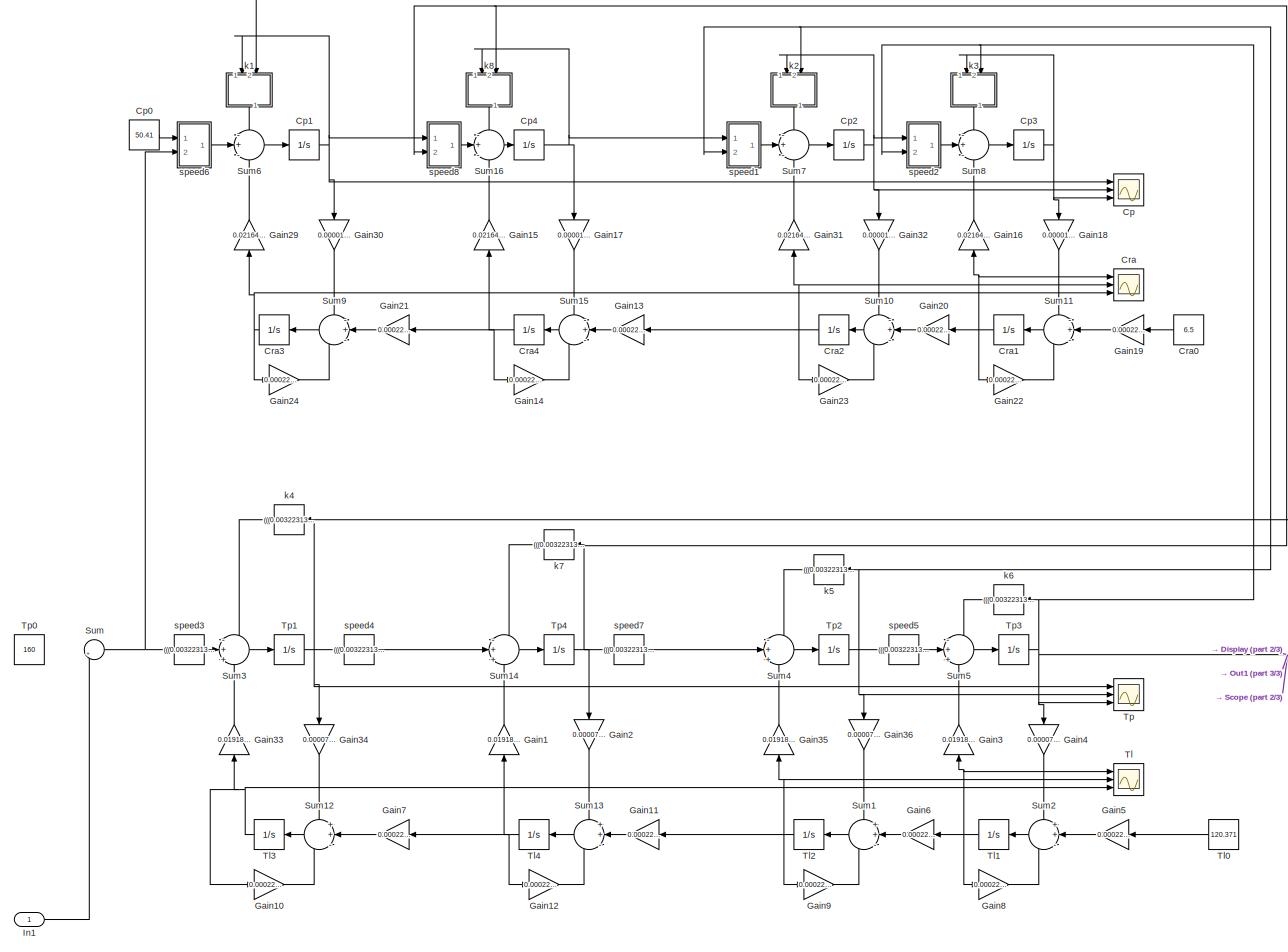
[diagram: root canvas - part 1/3, most of the canvas]
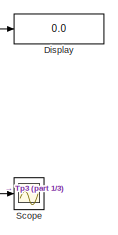
[diagram: root canvas - part 2/3, middle right region]
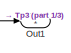
[diagram: root canvas - part 3/3, bottom right region]
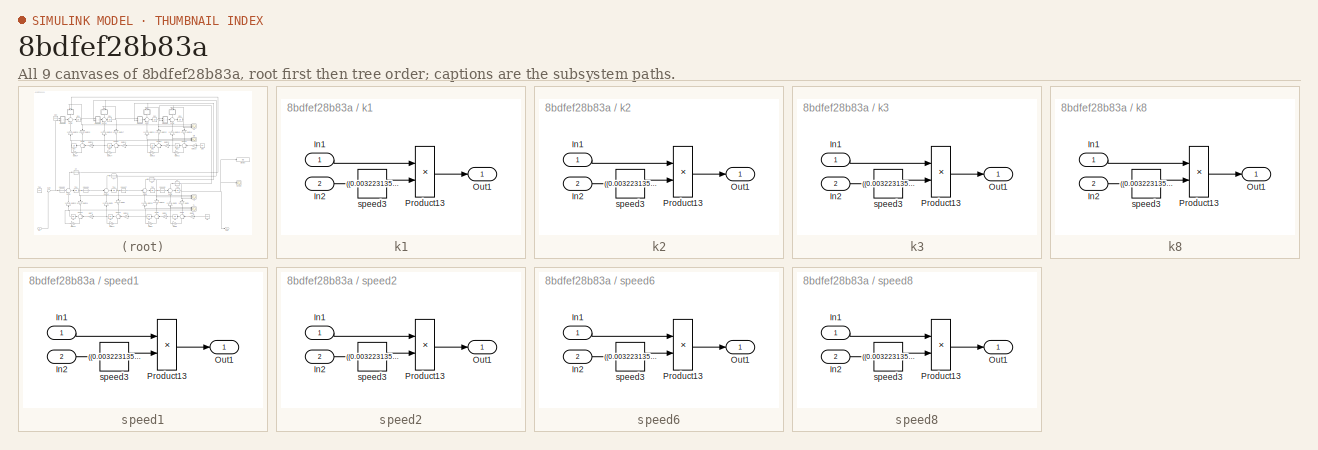
[diagram: thumbnail index - all 9 canvases of the model, root first then tree order]
MODEL slx_8bdfef28b83a
KIND model
CONFIG AbsTol = auto
CONFIG EnableMultiTasking = on
CONFIG FixedStep = 0.1
CONFIG MaxStep = auto
CONFIG MinStep = auto
CONFIG RelTol = 1e-3
CONFIG SampleTimeConstraint = Unconstrained
CONFIG Solver = ode3
CONFIG SolverName = ode3
CONFIG StartTime = 0.0
CONFIG StopTime = 90000
BLOCK [Scope] Cp
  Floating = off
  NumInputPorts = 3
  Ports = [3]
  ScopeSpecificationString = C++SS(StrPVP('Location','[86, 120, 541, 599]'),StrPVP('Open','off'),MxPVP('AxesTitles',53,'struct(''axes1'',''%<SignalLabel>'',''axes2'',''%<SignalLabel>'',''axes3'',''%<SignalLabel>'')'),MxPVP('ScopeGraphics',56,'struct(''FigureColor'',''[0.5 0.5 0.5]'',''AxesColor'',''[0 0 0]'',''AxesTickColor'',''[1 1 1]'',''LineColors'',''[1 1 0;1 0 1;0 1 1;1 0 0;0 1 0;0 0 1]'',''LineStyles'',''-|-|-|-|-|-'','...<+439ch>
BLOCK [Constant] Cp0
  Value = 50.41
BLOCK [Integrator] Cp1
  InitialCondition = 62.8910352690798
  Ports = [1, 1]
BLOCK [Integrator] Cp2
  InitialCondition = 78.0581380338609
  Ports = [1, 1]
BLOCK [Integrator] Cp3
  InitialCondition = 97.0647284967471
  Ports = [1, 1]
BLOCK [Integrator] Cp4
  InitialCondition = 70
  Ports = [1, 1]
BLOCK [Scope] Cra
  Floating = off
  NumInputPorts = 3
  Ports = [3]
  ScopeSpecificationString = C++SS(StrPVP('Location','[606, 119, 1060, 598]'),StrPVP('Open','off'),MxPVP('AxesTitles',53,'struct(''axes1'',''%<SignalLabel>'',''axes2'',''%<SignalLabel>'',''axes3'',''%<SignalLabel>'')'),MxPVP('ScopeGraphics',56,'struct(''FigureColor'',''[0.5 0.5 0.5]'',''AxesColor'',''[0 0 0]'',''AxesTickColor'',''[1 1 1]'',''LineColors'',''[1 1 0;1 0 1;0 1 1;1 0 0;0 1 0;0 0 1]'',''LineStyles'',''-|-|-|-|-|-''...<+421ch>
BLOCK [Constant] Cra0
  Value = 6.5
BLOCK [Integrator] Cra1
  InitialCondition = 4.2264294731348
  Ports = [1, 1]
BLOCK [Integrator] Cra2
  InitialCondition = 2.3980548949894
  Ports = [1, 1]
BLOCK [Integrator] Cra3
  InitialCondition = 0.9249430199510
  Ports = [1, 1]
BLOCK [Integrator] Cra4
  InitialCondition = 1.661
  Ports = [1, 1]
BLOCK [Display] Display
  Decimation = 1
  Ports = [1]
BLOCK [Gain] Gain1
  Gain = 0.0191806
  OutDataTypeStr = Inherit: Inherit via internal rule
  ParamDataTypeStr = Inherit: Inherit via internal rule
  SaturateOnIntegerOverflow = off
BLOCK [Gain] Gain10
  Gain = 0.0002291314/0.5+0.0000777
  OutDataTypeStr = Inherit: Inherit via internal rule
  ParamDataTypeStr = Inherit: Inherit via internal rule
  SaturateOnIntegerOverflow = off
BLOCK [Gain] Gain11
  Gain = 0.0002291314/0.5
  OutDataTypeStr = Inherit: Inherit via internal rule
  ParamDataTypeStr = Inherit: Inherit via internal rule
  SaturateOnIntegerOverflow = off
BLOCK [Gain] Gain12
  Gain = 0.0002291314/0.5+0.0000777
  OutDataTypeStr = Inherit: Inherit via internal rule
  ParamDataTypeStr = Inherit: Inherit via internal rule
  SaturateOnIntegerOverflow = off
BLOCK [Gain] Gain13
  Gain = 0.0002291314/0.5
  OutDataTypeStr = Inherit: Inherit via internal rule
  ParamDataTypeStr = Inherit: Inherit via internal rule
  SaturateOnIntegerOverflow = off
BLOCK [Gain] Gain14
  Gain = 0.0002291314/0.5-0.000010734*10^(-9)
  OutDataTypeStr = Inherit: Inherit via internal rule
  ParamDataTypeStr = Inherit: Inherit via internal rule
  SaturateOnIntegerOverflow = off
BLOCK [Gain] Gain15
  Gain = 0.0216487318*10^(-9)
  OutDataTypeStr = Inherit: Inherit via internal rule
  ParamDataTypeStr = Inherit: Inherit via internal rule
  SaturateOnIntegerOverflow = off
BLOCK [Gain] Gain16
  Gain = 0.0216487318*10^(-9)
  OutDataTypeStr = Inherit: Inherit via internal rule
  ParamDataTypeStr = Inherit: Inherit via internal rule
  SaturateOnIntegerOverflow = off
BLOCK [Gain] Gain17
  Gain = 0.000010734
  OutDataTypeStr = Inherit: Inherit via internal rule
  ParamDataTypeStr = Inherit: Inherit via internal rule
  SaturateOnIntegerOverflow = off
BLOCK [Gain] Gain18
  Gain = 0.000010734
  OutDataTypeStr = Inherit: Inherit via internal rule
  ParamDataTypeStr = Inherit: Inherit via internal rule
  SaturateOnIntegerOverflow = off
BLOCK [Gain] Gain19
  Gain = 0.0002291314/0.5
  OutDataTypeStr = Inherit: Inherit via internal rule
  ParamDataTypeStr = Inherit: Inherit via internal rule
  SaturateOnIntegerOverflow = off
BLOCK [Gain] Gain2
  Gain = 0.0000777
  OutDataTypeStr = Inherit: Inherit via internal rule
  ParamDataTypeStr = Inherit: Inherit via internal rule
  SaturateOnIntegerOverflow = off
BLOCK [Gain] Gain20
  Gain = 0.0002291314/0.5
  OutDataTypeStr = Inherit: Inherit via internal rule
  ParamDataTypeStr = Inherit: Inherit via internal rule
  SaturateOnIntegerOverflow = off
BLOCK [Gain] Gain21
  Gain = 0.0002291314/0.5
  OutDataTypeStr = Inherit: Inherit via internal rule
  ParamDataTypeStr = Inherit: Inherit via internal rule
  SaturateOnIntegerOverflow = off
BLOCK [Gain] Gain22
  Gain = 0.0002291314/0.5-0.000010734*10^(-9)
  OutDataTypeStr = Inherit: Inherit via internal rule
  ParamDataTypeStr = Inherit: Inherit via internal rule
  SaturateOnIntegerOverflow = off
BLOCK [Gain] Gain23
  Gain = 0.0002291314/0.5-0.000010734*10^(-9)
  OutDataTypeStr = Inherit: Inherit via internal rule
  ParamDataTypeStr = Inherit: Inherit via internal rule
  SaturateOnIntegerOverflow = off
BLOCK [Gain] Gain24
  Gain = 0.0002291314/0.5-0.000010734*10^(-9)
  OutDataTypeStr = Inherit: Inherit via internal rule
  ParamDataTypeStr = Inherit: Inherit via internal rule
  SaturateOnIntegerOverflow = off
BLOCK [Gain] Gain29
  Gain = 0.0216487318*10^(-9)
  OutDataTypeStr = Inherit: Inherit via internal rule
  ParamDataTypeStr = Inherit: Inherit via internal rule
  SaturateOnIntegerOverflow = off
BLOCK [Gain] Gain3
  Gain = 0.0191806
  OutDataTypeStr = Inherit: Inherit via internal rule
  ParamDataTypeStr = Inherit: Inherit via internal rule
  SaturateOnIntegerOverflow = off
BLOCK [Gain] Gain30
  Gain = 0.000010734
  OutDataTypeStr = Inherit: Inherit via internal rule
  ParamDataTypeStr = Inherit: Inherit via internal rule
  SaturateOnIntegerOverflow = off
BLOCK [Gain] Gain31
  Gain = 0.0216487318*10^(-9)
  OutDataTypeStr = Inherit: Inherit via internal rule
  ParamDataTypeStr = Inherit: Inherit via internal rule
  SaturateOnIntegerOverflow = off
BLOCK [Gain] Gain32
  Gain = 0.000010734
  OutDataTypeStr = Inherit: Inherit via internal rule
  ParamDataTypeStr = Inherit: Inherit via internal rule
  SaturateOnIntegerOverflow = off
BLOCK [Gain] Gain33
  Gain = 0.0191806
  OutDataTypeStr = Inherit: Inherit via internal rule
  ParamDataTypeStr = Inherit: Inherit via internal rule
  SaturateOnIntegerOverflow = off
BLOCK [Gain] Gain34
  Gain = 0.0000777
  OutDataTypeStr = Inherit: Inherit via internal rule
  ParamDataTypeStr = Inherit: Inherit via internal rule
  SaturateOnIntegerOverflow = off
BLOCK [Gain] Gain35
  Gain = 0.0191806
  OutDataTypeStr = Inherit: Inherit via internal rule
  ParamDataTypeStr = Inherit: Inherit via internal rule
  SaturateOnIntegerOverflow = off
BLOCK [Gain] Gain36
  Gain = 0.0000777
  OutDataTypeStr = Inherit: Inherit via internal rule
  ParamDataTypeStr = Inherit: Inherit via internal rule
  SaturateOnIntegerOverflow = off
BLOCK [Gain] Gain4
  Gain = 0.0000777
  OutDataTypeStr = Inherit: Inherit via internal rule
  ParamDataTypeStr = Inherit: Inherit via internal rule
  SaturateOnIntegerOverflow = off
BLOCK [Gain] Gain5
  Gain = 0.0002291314/0.5
  OutDataTypeStr = Inherit: Inherit via internal rule
  ParamDataTypeStr = Inherit: Inherit via internal rule
  SaturateOnIntegerOverflow = off
BLOCK [Gain] Gain6
  Gain = 0.0002291314/0.5
  OutDataTypeStr = Inherit: Inherit via internal rule
  ParamDataTypeStr = Inherit: Inherit via internal rule
  SaturateOnIntegerOverflow = off
BLOCK [Gain] Gain7
  Gain = 0.0002291314/0.5
  OutDataTypeStr = Inherit: Inherit via internal rule
  ParamDataTypeStr = Inherit: Inherit via internal rule
  SaturateOnIntegerOverflow = off
BLOCK [Gain] Gain8
  Gain = 0.0002291314/0.5+0.0000777
  OutDataTypeStr = Inherit: Inherit via internal rule
  ParamDataTypeStr = Inherit: Inherit via internal rule
  SaturateOnIntegerOverflow = off
BLOCK [Gain] Gain9
  Gain = 0.0002291314/0.5+0.0000777
  OutDataTypeStr = Inherit: Inherit via internal rule
  ParamDataTypeStr = Inherit: Inherit via internal rule
  SaturateOnIntegerOverflow = off
BLOCK [Inport] In1
  IconDisplay = Port number
BLOCK [Outport] Out1
  IconDisplay = Port number
BLOCK [Scope] Scope
  Floating = off
  NumInputPorts = 1
  Ports = [1]
  ScopeSpecificationString = Simulink.scopes.TimeScopeBlockCfg('CurrentConfiguration', extmgr.ConfigurationSet(extmgr.Configuration('Core','General UI',true),extmgr.Configuration('Core','Source UI',true),extmgr.Configuration('Sources','WiredSimulink',true,'DataLoggingVariableName','ScopeData1'),extmgr.Configuration('Visuals','Time Domain',true,'SerializedDisplays',{struct('MinYLimReal','41.72264','MaxYLimReal','162.68767','YL...<+1372ch>
BLOCK [Sum] Sum
  IconShape = round
  InputSameDT = off
  Inputs = |++
  OutDataTypeStr = Inherit: Inherit via internal rule
  Ports = [2, 1]
  SaturateOnIntegerOverflow = off
BLOCK [Sum] Sum1
  IconShape = round
  InputSameDT = off
  Inputs = ++-
  OutDataTypeStr = Inherit: Inherit via internal rule
  Ports = [3, 1]
  SaturateOnIntegerOverflow = off
BLOCK [Sum] Sum10
  IconShape = round
  InputSameDT = off
  Inputs = -+-
  OutDataTypeStr = Inherit: Inherit via internal rule
  Ports = [3, 1]
  SaturateOnIntegerOverflow = off
BLOCK [Sum] Sum11
  IconShape = round
  InputSameDT = off
  Inputs = -+-
  OutDataTypeStr = Inherit: Inherit via internal rule
  Ports = [3, 1]
  SaturateOnIntegerOverflow = off
BLOCK [Sum] Sum12
  IconShape = round
  InputSameDT = off
  Inputs = ++-
  OutDataTypeStr = Inherit: Inherit via internal rule
  Ports = [3, 1]
  SaturateOnIntegerOverflow = off
BLOCK [Sum] Sum13
  IconShape = round
  InputSameDT = off
  Inputs = ++-
  OutDataTypeStr = Inherit: Inherit via internal rule
  Ports = [3, 1]
  SaturateOnIntegerOverflow = off
BLOCK [Sum] Sum14
  IconShape = round
  InputSameDT = off
  Inputs = -++
  OutDataTypeStr = Inherit: Inherit via internal rule
  Ports = [3, 1]
  SaturateOnIntegerOverflow = off
BLOCK [Sum] Sum15
  IconShape = round
  InputSameDT = off
  Inputs = -+-
  OutDataTypeStr = Inherit: Inherit via internal rule
  Ports = [3, 1]
  SaturateOnIntegerOverflow = off
BLOCK [Sum] Sum16
  IconShape = round
  InputSameDT = off
  Inputs = -+-
  OutDataTypeStr = Inherit: Inherit via internal rule
  Ports = [3, 1]
  SaturateOnIntegerOverflow = off
BLOCK [Sum] Sum2
  IconShape = round
  InputSameDT = off
  Inputs = ++-
  OutDataTypeStr = Inherit: Inherit via internal rule
  Ports = [3, 1]
  SaturateOnIntegerOverflow = off
BLOCK [Sum] Sum3
  IconShape = round
  InputSameDT = off
  Inputs = -++
  OutDataTypeStr = Inherit: Inherit via internal rule
  Ports = [3, 1]
  SaturateOnIntegerOverflow = off
BLOCK [Sum] Sum4
  IconShape = round
  InputSameDT = off
  Inputs = -++
  OutDataTypeStr = Inherit: Inherit via internal rule
  Ports = [3, 1]
  SaturateOnIntegerOverflow = off
BLOCK [Sum] Sum5
  IconShape = round
  InputSameDT = off
  Inputs = -++
  OutDataTypeStr = Inherit: Inherit via internal rule
  Ports = [3, 1]
  SaturateOnIntegerOverflow = off
BLOCK [Sum] Sum6
  IconShape = round
  InputSameDT = off
  Inputs = -+-
  OutDataTypeStr = Inherit: Inherit via internal rule
  Ports = [3, 1]
  SaturateOnIntegerOverflow = off
BLOCK [Sum] Sum7
  IconShape = round
  InputSameDT = off
  Inputs = -+-
  OutDataTypeStr = Inherit: Inherit via internal rule
  Ports = [3, 1]
  SaturateOnIntegerOverflow = off
BLOCK [Sum] Sum8
  IconShape = round
  InputSameDT = off
  Inputs = -+-
  OutDataTypeStr = Inherit: Inherit via internal rule
  Ports = [3, 1]
  SaturateOnIntegerOverflow = off
BLOCK [Sum] Sum9
  IconShape = round
  InputSameDT = off
  Inputs = -+-
  OutDataTypeStr = Inherit: Inherit via internal rule
  Ports = [3, 1]
  SaturateOnIntegerOverflow = off
BLOCK [Scope] Tl
  Floating = off
  NumInputPorts = 3
  Ports = [3]
  ScopeSpecificationString = C++SS(StrPVP('Location','[539, 135, 993, 614]'),StrPVP('Open','off'),MxPVP('AxesTitles',53,'struct(''axes1'',''%<SignalLabel>'',''axes2'',''%<SignalLabel>'',''axes3'',''%<SignalLabel>'')'),MxPVP('ScopeGraphics',56,'struct(''FigureColor'',''[0.5 0.5 0.5]'',''AxesColor'',''[0 0 0]'',''AxesTickColor'',''[1 1 1]'',''LineColors'',''[1 1 0;1 0 1;0 1 1;1 0 0;0 1 0;0 0 1]'',''LineStyles'',''-|-|-|-|-|-'',...<+433ch>
BLOCK [Constant] Tl0
  Value = 120.371
BLOCK [Integrator] Tl1
  InitialCondition = 124.7521008288133
  Ports = [1, 1]
BLOCK [Integrator] Tl2
  InitialCondition = 128.9747697447938
  Ports = [1, 1]
BLOCK [Integrator] Tl3
  InitialCondition = 133.0396819538713
  Ports = [1, 1]
BLOCK [Integrator] Tl4
  InitialCondition = 130.5
  Ports = [1, 1]
BLOCK [Scope] Tp
  Floating = off
  NumInputPorts = 3
  Ports = [3]
  ScopeSpecificationString = Simulink.scopes.TimeScopeBlockCfg('CurrentConfiguration', extmgr.ConfigurationSet(extmgr.Configuration('Core','General UI',true),extmgr.Configuration('Core','Source UI',true),extmgr.Configuration('Sources','WiredSimulink',true,'DataLogging',true,'DataLoggingVariableName','ScopeData2','DataLoggingSaveFormat','StructureWithTime','DataLoggingDecimation','1','DataLoggingDecimateData',true),extmgr.Conf...<+3097ch>
BLOCK [Constant] Tp0
  Commented = on
  Value = 160
BLOCK [Integrator] Tp1
  InitialCondition = 157.0139168404367
  Ports = [1, 1]
BLOCK [Integrator] Tp2
  InitialCondition = 153.8794297307592
  Ports = [1, 1]
BLOCK [Integrator] Tp3
  IgnoreLimit = on
  InitialCondition = 150.5911681762652
  Ports = [1, 1]
BLOCK [Integrator] Tp4
  InitialCondition = 155
  Ports = [1, 1]
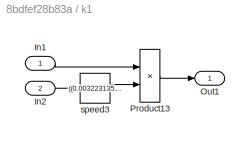
BLOCK [SubSystem] k1
  Ports = [2, 1]
  RequestExecContextInheritance = off
BLOCK [Inport] k1/In1
  IconDisplay = Port number
BLOCK [Inport] k1/In2
  IconDisplay = Port number
  Port = 2
BLOCK [Outport] k1/Out1
  IconDisplay = Port number
BLOCK [Product] k1/Product13
  Ports = [2, 1]
  RndMeth = Floor
BLOCK [Fcn] k1/speed3
  Expr = ((0.003223135*(273+u))/24.69822264)/0.5-0.0216487318
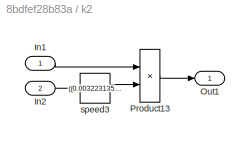
BLOCK [SubSystem] k2
  Ports = [2, 1]
  RequestExecContextInheritance = off
BLOCK [Inport] k2/In1
  IconDisplay = Port number
BLOCK [Inport] k2/In2
  IconDisplay = Port number
  Port = 2
BLOCK [Outport] k2/Out1
  IconDisplay = Port number
BLOCK [Product] k2/Product13
  Ports = [2, 1]
  RndMeth = Floor
BLOCK [Fcn] k2/speed3
  Expr = ((0.003223135*(273+u))/24.69822264)/0.5-0.0216487318
BLOCK [SubSystem] k3
  Ports = [2, 1]
  RequestExecContextInheritance = off
BLOCK [Inport] k3/In1
  IconDisplay = Port number
BLOCK [Inport] k3/In2
  IconDisplay = Port number
  Port = 2
BLOCK [Outport] k3/Out1
  IconDisplay = Port number
BLOCK [Product] k3/Product13
  Ports = [2, 1]
  RndMeth = Floor
BLOCK [Fcn] k3/speed3
  Expr = ((0.003223135*(273+u))/24.69822264)/0.5-0.0216487318
BLOCK [Fcn] k4
  Expr = (((0.003223135*(273+u))/24.69822264)/0.5+0.0191806)*u
BLOCK [Fcn] k5
  Expr = (((0.003223135*(273+u))/24.69822264)/0.5+0.0191806)*u
BLOCK [Fcn] k6
  Expr = (((0.003223135*(273+u))/24.69822264)/0.5+0.0191806)*u
BLOCK [Fcn] k7
  Expr = (((0.003223135*(273+u))/24.69822264)/0.5+0.0191806)*u
BLOCK [SubSystem] k8
  Ports = [2, 1]
  RequestExecContextInheritance = off
BLOCK [Inport] k8/In1
  IconDisplay = Port number
BLOCK [Inport] k8/In2
  IconDisplay = Port number
  Port = 2
BLOCK [Outport] k8/Out1
  IconDisplay = Port number
BLOCK [Product] k8/Product13
  Ports = [2, 1]
  RndMeth = Floor
BLOCK [Fcn] k8/speed3
  Expr = ((0.003223135*(273+u))/24.69822264)/0.5-0.0216487318
BLOCK [SubSystem] speed1
  Ports = [2, 1]
  RequestExecContextInheritance = off
BLOCK [Inport] speed1/In1
  IconDisplay = Port number
BLOCK [Inport] speed1/In2
  IconDisplay = Port number
  Port = 2
BLOCK [Outport] speed1/Out1
  IconDisplay = Port number
BLOCK [Product] speed1/Product13
  Ports = [2, 1]
  RndMeth = Floor
BLOCK [Fcn] speed1/speed3
  Expr = ((0.003223135*(273+u))/24.69822264)/0.5
BLOCK [SubSystem] speed2
  Ports = [2, 1]
  RequestExecContextInheritance = off
BLOCK [Inport] speed2/In1
  IconDisplay = Port number
BLOCK [Inport] speed2/In2
  IconDisplay = Port number
  Port = 2
BLOCK [Outport] speed2/Out1
  IconDisplay = Port number
BLOCK [Product] speed2/Product13
  Ports = [2, 1]
  RndMeth = Floor
BLOCK [Fcn] speed2/speed3
  Expr = ((0.003223135*(273+u))/24.69822264)/0.5
BLOCK [Fcn] speed3
  Expr = (((0.003223135*(273+u))/24.69822264)/0.5)*u
BLOCK [Fcn] speed4
  Expr = (((0.003223135*(273+u))/24.69822264)/0.5)*u
BLOCK [Fcn] speed5
  Expr = (((0.003223135*(273+u))/24.69822264)/0.5)*u
BLOCK [SubSystem] speed6
  Ports = [2, 1]
  RequestExecContextInheritance = off
BLOCK [Inport] speed6/In1
  IconDisplay = Port number
BLOCK [Inport] speed6/In2
  IconDisplay = Port number
  Port = 2
BLOCK [Outport] speed6/Out1
  IconDisplay = Port number
BLOCK [Product] speed6/Product13
  Ports = [2, 1]
  RndMeth = Floor
BLOCK [Fcn] speed6/speed3
  Expr = ((0.003223135*(273+u))/24.69822264)/0.5
BLOCK [Fcn] speed7
  Expr = (((0.003223135*(273+u))/24.69822264)/0.5)*u
BLOCK [SubSystem] speed8
  Ports = [2, 1]
  RequestExecContextInheritance = off
BLOCK [Inport] speed8/In1
  IconDisplay = Port number
BLOCK [Inport] speed8/In2
  IconDisplay = Port number
  Port = 2
BLOCK [Outport] speed8/Out1
  IconDisplay = Port number
BLOCK [Product] speed8/Product13
  Ports = [2, 1]
  RndMeth = Floor
BLOCK [Fcn] speed8/speed3
  Expr = ((0.003223135*(273+u))/24.69822264)/0.5
LINE Cp0:1 -> speed6:1
NET Cp1:1 -> Cp:1, Gain30:1, k1:1, speed8:1
NET Cp2:1 -> Cp:2, Gain32:1, k2:1, speed2:1
NET Cp3:1 -> Cp:3, Gain18:1, k3:1
NET Cp4:1 -> Gain17:1, k8:1, speed1:1
LINE Cra0:1 -> Gain19:1
NET Cra1:1 -> Cra:1, Gain16:1, Gain20:1, Gain22:1
NET Cra2:1 -> Cra:2, Gain13:1, Gain23:1, Gain31:1
NET Cra3:1 -> Cra:3, Gain24:1, Gain29:1
NET Cra4:1 -> Gain14:1, Gain15:1, Gain21:1
LINE Gain10:1 -> Sum12:3
LINE Gain11:1 -> Sum13:2
LINE Gain12:1 -> Sum13:3
LINE Gain13:1 -> Sum15:2
LINE Gain14:1 -> Sum15:3
LINE Gain15:1 -> Sum16:3
LINE Gain16:1 -> Sum8:3
LINE Gain17:1 -> Sum15:1
LINE Gain18:1 -> Sum11:1
LINE Gain19:1 -> Sum11:2
LINE Gain1:1 -> Sum14:3
LINE Gain20:1 -> Sum10:2
LINE Gain21:1 -> Sum9:2
LINE Gain22:1 -> Sum11:3
LINE Gain23:1 -> Sum10:3
LINE Gain24:1 -> Sum9:3
LINE Gain29:1 -> Sum6:3
LINE Gain2:1 -> Sum13:1
LINE Gain30:1 -> Sum9:1
LINE Gain31:1 -> Sum7:3
LINE Gain32:1 -> Sum10:1
LINE Gain33:1 -> Sum3:3
LINE Gain34:1 -> Sum12:1
LINE Gain35:1 -> Sum4:3
LINE Gain36:1 -> Sum1:1
LINE Gain3:1 -> Sum5:3
LINE Gain4:1 -> Sum2:1
LINE Gain5:1 -> Sum2:2
LINE Gain6:1 -> Sum1:2
LINE Gain7:1 -> Sum12:2
LINE Gain8:1 -> Sum2:3
LINE Gain9:1 -> Sum1:3
LINE In1:1 -> Sum:2
LINE Sum10:1 -> Cra2:1
LINE Sum11:1 -> Cra1:1
LINE Sum12:1 -> Tl3:1
LINE Sum13:1 -> Tl4:1
LINE Sum14:1 -> Tp4:1
LINE Sum15:1 -> Cra4:1
LINE Sum16:1 -> Cp4:1
LINE Sum1:1 -> Tl2:1
LINE Sum2:1 -> Tl1:1
LINE Sum3:1 -> Tp1:1
LINE Sum4:1 -> Tp2:1
LINE Sum5:1 -> Tp3:1
LINE Sum6:1 -> Cp1:1
LINE Sum7:1 -> Cp2:1
LINE Sum8:1 -> Cp3:1
LINE Sum9:1 -> Cra3:1
NET Sum:1 -> speed3:1, speed6:2
LINE Tl0:1 -> Gain5:1
NET Tl1:1 -> Gain3:1, Gain6:1, Gain8:1, Tl:1
NET Tl2:1 -> Gain11:1, Gain35:1, Gain9:1, Tl:2
NET Tl3:1 -> Gain10:1, Gain33:1, Tl:3
NET Tl4:1 -> Gain12:1, Gain1:1, Gain7:1
NET Tp1:1 -> Gain34:1, Tp:1, k1:2, k4:1, speed4:1
NET Tp2:1 -> Gain36:1, Tp:2, k2:2, k5:1, speed1:2, speed5:1
NET Tp3:1 -> Display:1, Gain4:1, Out1:1, Scope:1, Tp:3, k3:2, k6:1, speed2:2
NET Tp4:1 -> Gain2:1, k7:1, k8:2, speed7:1, speed8:2
LINE k1/In1:1 -> k1/Product13:1
LINE k1/In2:1 -> k1/speed3:1
LINE k1/Product13:1 -> k1/Out1:1
LINE k1/speed3:1 -> k1/Product13:2
LINE k1:1 -> Sum6:1
LINE k2/In1:1 -> k2/Product13:1
LINE k2/In2:1 -> k2/speed3:1
LINE k2/Product13:1 -> k2/Out1:1
LINE k2/speed3:1 -> k2/Product13:2
LINE k2:1 -> Sum7:1
LINE k3/In1:1 -> k3/Product13:1
LINE k3/In2:1 -> k3/speed3:1
LINE k3/Product13:1 -> k3/Out1:1
LINE k3/speed3:1 -> k3/Product13:2
LINE k3:1 -> Sum8:1
LINE k4:1 -> Sum3:1
LINE k5:1 -> Sum4:1
LINE k6:1 -> Sum5:1
LINE k7:1 -> Sum14:1
LINE k8/In1:1 -> k8/Product13:1
LINE k8/In2:1 -> k8/speed3:1
LINE k8/Product13:1 -> k8/Out1:1
LINE k8/speed3:1 -> k8/Product13:2
LINE k8:1 -> Sum16:1
LINE speed1/In1:1 -> speed1/Product13:1
LINE speed1/In2:1 -> speed1/speed3:1
LINE speed1/Product13:1 -> speed1/Out1:1
LINE speed1/speed3:1 -> speed1/Product13:2
LINE speed1:1 -> Sum7:2
LINE speed2/In1:1 -> speed2/Product13:1
LINE speed2/In2:1 -> speed2/speed3:1
LINE speed2/Product13:1 -> speed2/Out1:1
LINE speed2/speed3:1 -> speed2/Product13:2
LINE speed2:1 -> Sum8:2
LINE speed3:1 -> Sum3:2
LINE speed4:1 -> Sum14:2
LINE speed5:1 -> Sum5:2
LINE speed6/In1:1 -> speed6/Product13:1
LINE speed6/In2:1 -> speed6/speed3:1
LINE speed6/Product13:1 -> speed6/Out1:1
LINE speed6/speed3:1 -> speed6/Product13:2
LINE speed6:1 -> Sum6:2
LINE speed7:1 -> Sum4:2
LINE speed8/In1:1 -> speed8/Product13:1
LINE speed8/In2:1 -> speed8/speed3:1
LINE speed8/Product13:1 -> speed8/Out1:1
LINE speed8/speed3:1 -> speed8/Product13:2
LINE speed8:1 -> Sum16:2
note: NET lines group one-source signal fan-out (src -> all destinations, sorted); 1:1 wires keep LINE
